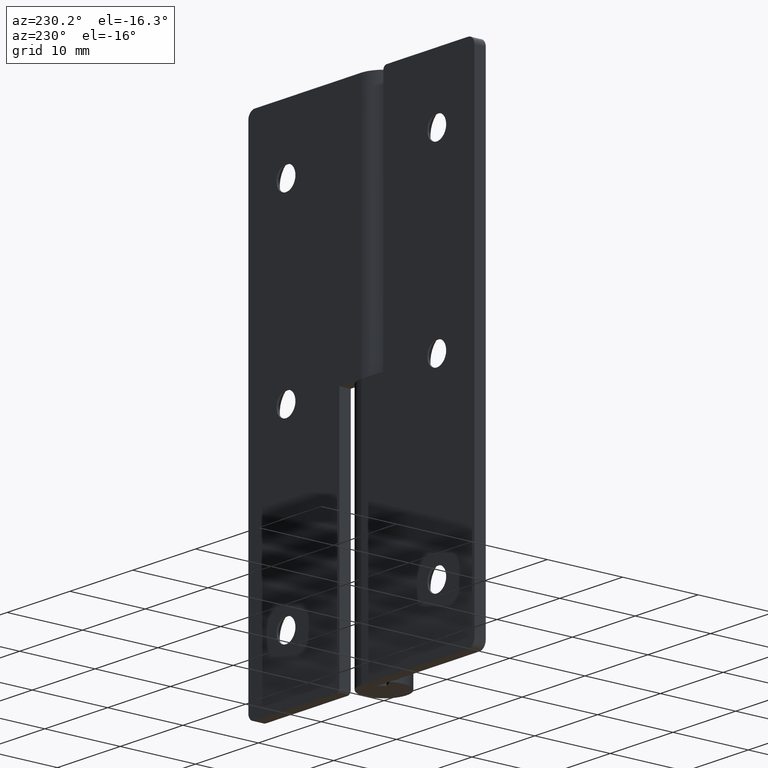
[diagram: clean part render]
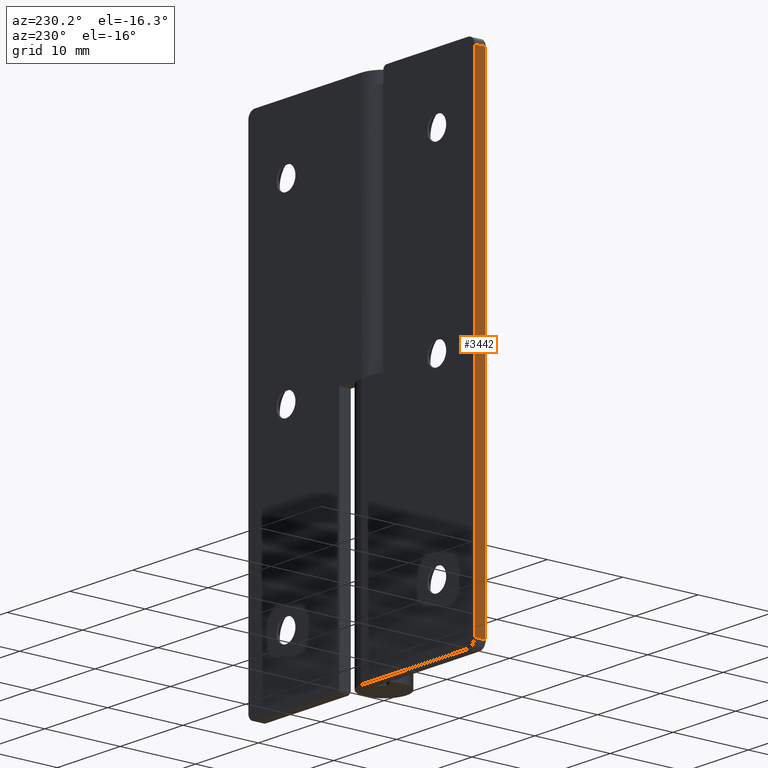
[diagram: same view with one face highlighted and labeled with its STEP entity id]
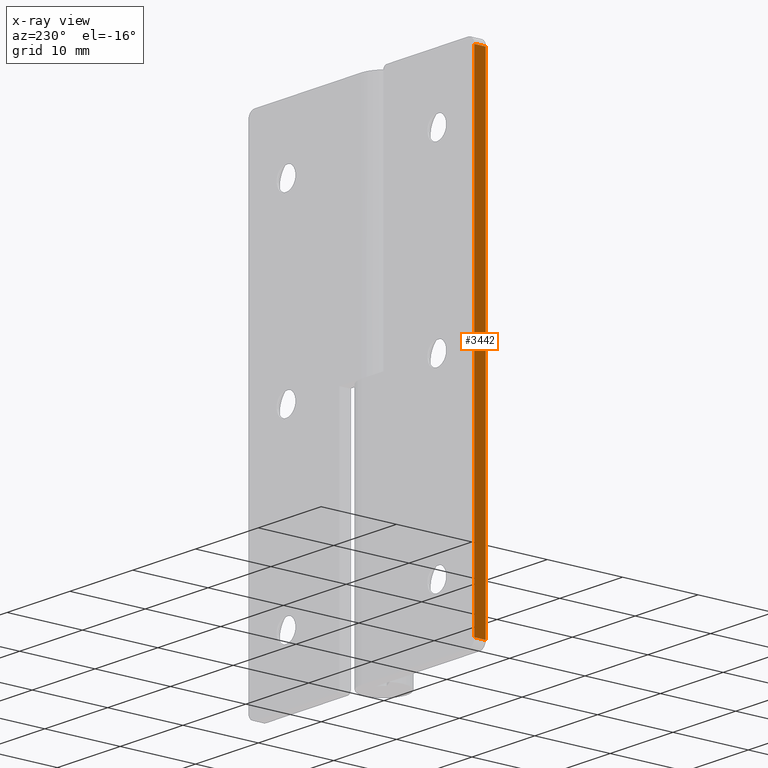
[diagram: x-ray of the same camera — body ghosted, the highlighted face saturated]
A machine part, auxiliary view. The second image highlights one B-rep face of the part: STEP entity #3442.
The next image is the same camera in x-ray: the body ghosted, the highlighted face saturated — about 0% of this face is hidden behind the body in this view.
In plain terms, the highlighted face is a freeform B-spline surface patch.
Its self-contained STEP definition (entity closure, byte-faithful):
#3141=CARTESIAN_POINT('',(-18.0,1.500000000000055,64.0));
#3142=VERTEX_POINT('',#3141);
#3163=CARTESIAN_POINT('',(-18.0,3.0,64.0));
#3164=VERTEX_POINT('',#3163);
#3178=CARTESIAN_POINT('',(-18.0,3.0,64.0));
#3179=CARTESIAN_POINT('',(-18.0,1.500000000000055,64.0));
#3180=QUASI_UNIFORM_CURVE('',1,(#3178,#3179),.UNSPECIFIED.,.F.,.U.);
#3181=EDGE_CURVE('',#3164,#3142,#3180,.T.);
#3200=CARTESIAN_POINT('',(-18.0,1.500000000000055,1.0));
#3201=VERTEX_POINT('',#3200);
#3217=CARTESIAN_POINT('',(-18.0,3.0,1.0));
#3218=VERTEX_POINT('',#3217);
#3219=CARTESIAN_POINT('',(-18.0,3.0,1.0));
#3220=CARTESIAN_POINT('',(-18.0,1.500000000000055,1.0));
#3221=QUASI_UNIFORM_CURVE('',1,(#3219,#3220),.UNSPECIFIED.,.F.,.U.);
#3222=EDGE_CURVE('',#3218,#3201,#3221,.T.);
#3423=CARTESIAN_POINT('',(-18.0,1.425075002907349,67.146849877893771));
#3424=CARTESIAN_POINT('',(-18.0,1.425075002907349,-2.146851567685453));
#3425=CARTESIAN_POINT('',(-18.0,3.074925037325842,67.146849877893771));
#3426=CARTESIAN_POINT('',(-18.0,3.074925037325842,-2.146851567685453));
#3427=B_SPLINE_SURFACE_WITH_KNOTS('',1,1,((#3423,#3425),(#3424,#3426)),.UNSPECIFIED.,.F.,.F.,.U.,(2,2),(2,2),(0.0,69.293701445579231),(0.041708334948495,0.958291687403247),.UNSPECIFIED.);
#3428=ORIENTED_EDGE('',*,*,#3181,.F.);
#3429=CARTESIAN_POINT('',(-18.0,3.0,1.0));
#3430=CARTESIAN_POINT('',(-18.0,3.0,64.0));
#3431=QUASI_UNIFORM_CURVE('',1,(#3429,#3430),.UNSPECIFIED.,.F.,.U.);
#3432=EDGE_CURVE('',#3218,#3164,#3431,.T.);
#3433=ORIENTED_EDGE('',*,*,#3432,.F.);
#3434=ORIENTED_EDGE('',*,*,#3222,.T.);
#3435=CARTESIAN_POINT('',(-18.0,1.500000000000055,1.0));
#3436=CARTESIAN_POINT('',(-18.0,1.500000000000055,64.0));
#3437=QUASI_UNIFORM_CURVE('',1,(#3435,#3436),.UNSPECIFIED.,.F.,.U.);
#3438=EDGE_CURVE('',#3201,#3142,#3437,.T.);
#3439=ORIENTED_EDGE('',*,*,#3438,.T.);
#3440=EDGE_LOOP('',(#3428,#3433,#3434,#3439));
#3441=FACE_OUTER_BOUND('',#3440,.T.);
#3442=ADVANCED_FACE('',(#3441),#3427,.F.);